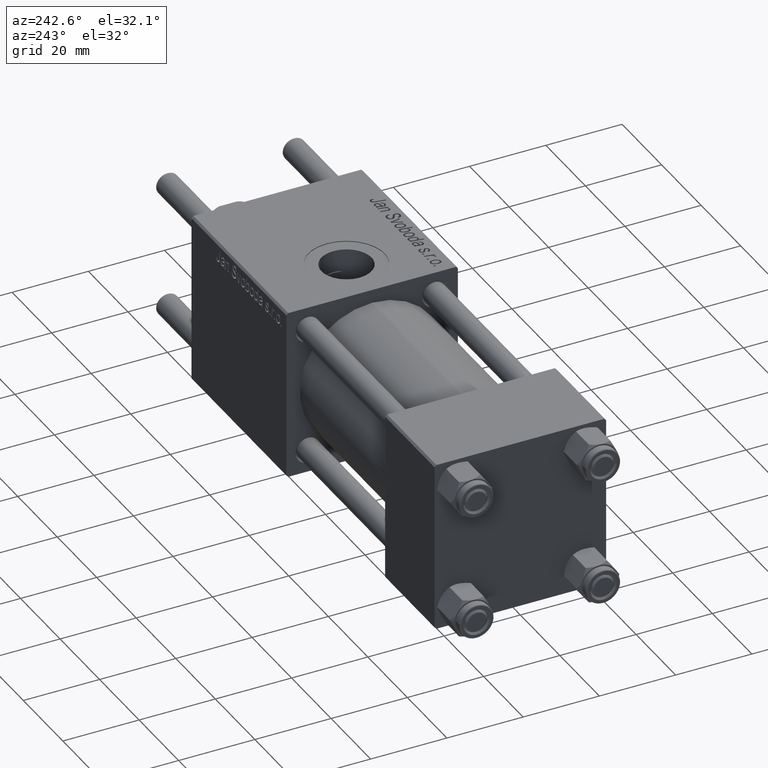
[diagram: clean part render]
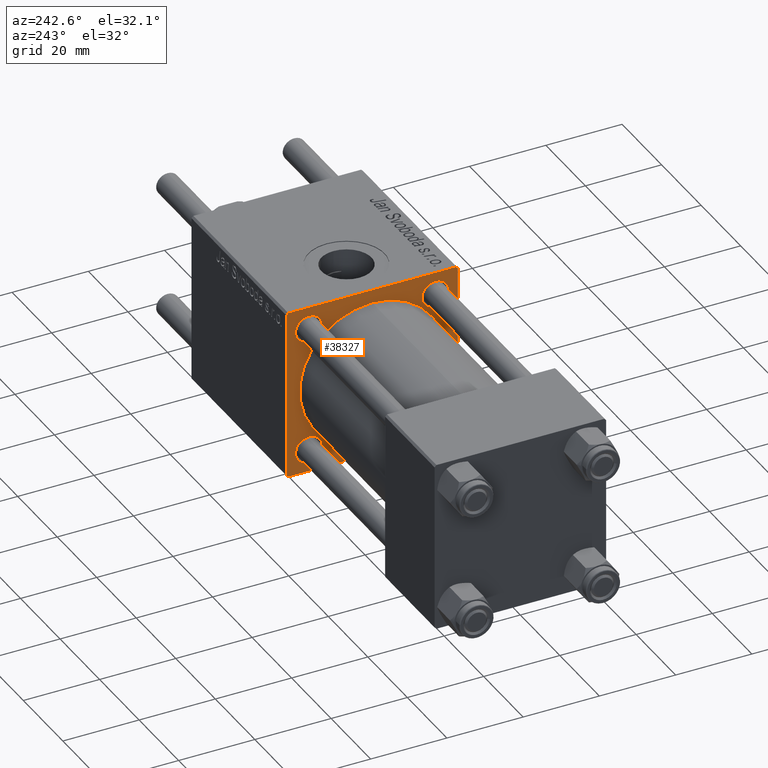
[diagram: same view with one face highlighted and labeled with its STEP entity id]
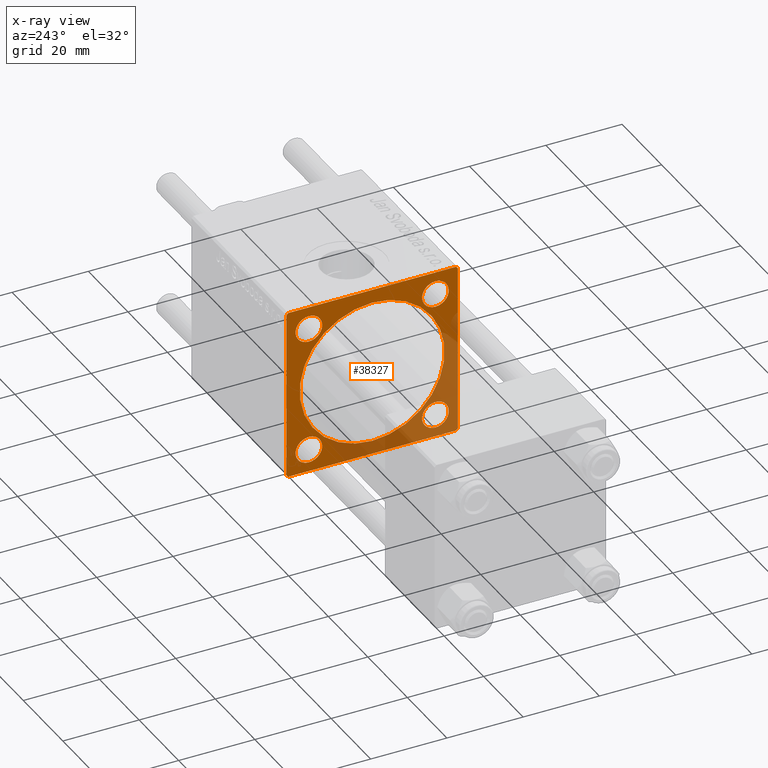
[diagram: x-ray of the same camera — body ghosted, the highlighted face saturated]
A machine part, auxiliary view. The second image highlights one B-rep face of the part: STEP entity #38327.
The next image is the same camera in x-ray: the body ghosted, the highlighted face saturated — about 33% of this face is hidden behind the body in this view.
In plain terms, the highlighted planar face has unit normal (-1, 0, 0).
Its self-contained STEP definition (entity closure, byte-faithful):
#276 = FACE_BOUND ( 'NONE', #54522, .T. ) ;
#398 = DIRECTION ( 'NONE',  ( 0.000000000000000000, 0.7071067811865573427, -0.7071067811865378028 ) ) ;
#882 = ORIENTED_EDGE ( 'NONE', *, *, #22724, .T. ) ;
#2401 = ORIENTED_EDGE ( 'NONE', *, *, #48930, .T. ) ;
#2732 = DIRECTION ( 'NONE',  ( 0.000000000000000000, -1.000000000000000000, -7.709882115452476934E-17 ) ) ;
#2763 = CARTESIAN_POINT ( 'NONE',  ( 75.00000000000001421, 22.24999999999969802, -22.25000000000031619 ) ) ;
#2866 = CARTESIAN_POINT ( 'NONE',  ( 75.00000000000001421, 16.59999999999999787, 16.60000000000000497 ) ) ;
#3152 = DIRECTION ( 'NONE',  ( 0.000000000000000000, 0.000000000000000000, 1.000000000000000000 ) ) ;
#3282 = VERTEX_POINT ( 'NONE', #40581 ) ;
#3482 = FACE_BOUND ( 'NONE', #8520, .T. ) ;
#3771 = FACE_BOUND ( 'NONE', #48460, .T. ) ;
#4140 = VERTEX_POINT ( 'NONE', #20166 ) ;
#4346 = CARTESIAN_POINT ( 'NONE',  ( 75.00000000000001421, -22.49999999999999645, 22.49999999999999289 ) ) ;
#4892 = ORIENTED_EDGE ( 'NONE', *, *, #25230, .T. ) ;
#5346 = AXIS2_PLACEMENT_3D ( 'NONE', #16384, #29632, #33946 ) ;
#5455 = CARTESIAN_POINT ( 'NONE',  ( 75.00000000000001421, -22.49999999999999645, 22.00000000000000711 ) ) ;
#5637 = LINE ( 'NONE', #24041, #22282 ) ;
#6040 = CARTESIAN_POINT ( 'NONE',  ( 75.00000000000001421, -22.24999999999969447, 22.25000000000030909 ) ) ;
#6173 = ORIENTED_EDGE ( 'NONE', *, *, #8071, .T. ) ;
#6295 = VECTOR ( 'NONE', #398, 1000.000000000000000 ) ;
#6406 = EDGE_CURVE ( 'NONE', #36376, #54645, #51437, .T. ) ;
#6855 = CARTESIAN_POINT ( 'NONE',  ( 75.00000000000001421, -21.99999999999998224, 22.49999999999999289 ) ) ;
#6980 = EDGE_LOOP ( 'NONE', ( #15155, #6173 ) ) ;
#7081 = EDGE_CURVE ( 'NONE', #4140, #39447, #55218, .T. ) ;
#7753 = DIRECTION ( 'NONE',  ( 1.000000000000000000, -0.000000000000000000, 0.000000000000000000 ) ) ;
#8071 = EDGE_CURVE ( 'NONE', #54421, #10940, #43592, .T. ) ;
#8520 = EDGE_LOOP ( 'NONE', ( #39791, #50613 ) ) ;
#8642 = AXIS2_PLACEMENT_3D ( 'NONE', #22662, #31573, #40250 ) ;
#9504 = CARTESIAN_POINT ( 'NONE',  ( 75.00000000000001421, -2.752562955852396712E-16, -19.00000000000000000 ) ) ;
#9583 = VERTEX_POINT ( 'NONE', #28149 ) ;
#9734 = AXIS2_PLACEMENT_3D ( 'NONE', #25753, #16525, #33509 ) ;
#9835 = ORIENTED_EDGE ( 'NONE', *, *, #14162, .T. ) ;
#9852 = EDGE_LOOP ( 'NONE', ( #882, #51970, #14075, #51284, #46346, #16383, #20194, #25691 ) ) ;
#9876 = VECTOR ( 'NONE', #2732, 1000.000000000000000 ) ;
#10363 = LINE ( 'NONE', #6040, #45503 ) ;
#10458 = ORIENTED_EDGE ( 'NONE', *, *, #18955, .T. ) ;
#10940 = VERTEX_POINT ( 'NONE', #45061 ) ;
#11078 = DIRECTION ( 'NONE',  ( 1.000000000000000000, 0.000000000000000000, 0.000000000000000000 ) ) ;
#11506 = EDGE_CURVE ( 'NONE', #29976, #17601, #10363, .T. ) ;
#11594 = VECTOR ( 'NONE', #17094, 1000.000000000000000 ) ;
#12139 = CARTESIAN_POINT ( 'NONE',  ( 75.00000000000001421, -16.59999999999999076, -20.10000000000003695 ) ) ;
#12453 = ORIENTED_EDGE ( 'NONE', *, *, #30719, .T. ) ;
#12976 = CARTESIAN_POINT ( 'NONE',  ( 75.00000000000001421, -16.59999999999999076, 20.10000000000002274 ) ) ;
#13224 = FACE_BOUND ( 'NONE', #17630, .T. ) ;
#13249 = AXIS2_PLACEMENT_3D ( 'NONE', #15648, #11078, #42709 ) ;
#14075 = ORIENTED_EDGE ( 'NONE', *, *, #39975, .F. ) ;
#14162 = EDGE_CURVE ( 'NONE', #47550, #34654, #17835, .T. ) ;
#14788 = CARTESIAN_POINT ( 'NONE',  ( 75.00000000000001421, 22.24999999999968026, 22.25000000000029488 ) ) ;
#15155 = ORIENTED_EDGE ( 'NONE', *, *, #17900, .T. ) ;
#15237 = CIRCLE ( 'NONE', #36351, 3.500000000000031086 ) ;
#15648 = CARTESIAN_POINT ( 'NONE',  ( 75.00000000000001421, -2.602085213965210642E-15, 0.000000000000000000 ) ) ;
#15857 = CARTESIAN_POINT ( 'NONE',  ( 75.00000000000001421, 22.50000000000000355, -21.99999999999999645 ) ) ;
#16383 = ORIENTED_EDGE ( 'NONE', *, *, #31369, .T. ) ;
#16384 = CARTESIAN_POINT ( 'NONE',  ( 75.00000000000001421, -16.59999999999999076, 16.60000000000000853 ) ) ;
#16525 = DIRECTION ( 'NONE',  ( 1.000000000000000000, 0.000000000000000000, 0.000000000000000000 ) ) ;
#17094 = DIRECTION ( 'NONE',  ( -0.000000000000000000, -0.7071067811865573427, -0.7071067811865378028 ) ) ;
#17287 = CIRCLE ( 'NONE', #49510, 3.500000000000016875 ) ;
#17299 = CARTESIAN_POINT ( 'NONE',  ( 75.00000000000001421, -16.59999999999999076, -16.60000000000000853 ) ) ;
#17601 = VERTEX_POINT ( 'NONE', #6855 ) ;
#17630 = EDGE_LOOP ( 'NONE', ( #32527, #4892 ) ) ;
#17835 = CIRCLE ( 'NONE', #13249, 19.00000000000000000 ) ;
#17900 = EDGE_CURVE ( 'NONE', #10940, #54421, #15237, .T. ) ;
#18539 = CARTESIAN_POINT ( 'NONE',  ( 75.00000000000001421, 21.99999999999996092, 22.50000000000000355 ) ) ;
#18558 = EDGE_CURVE ( 'NONE', #3282, #55380, #28993, .T. ) ;
#18874 = AXIS2_PLACEMENT_3D ( 'NONE', #38192, #37914, #24679 ) ;
#18955 = EDGE_CURVE ( 'NONE', #34654, #47550, #34536, .T. ) ;
#19428 = DIRECTION ( 'NONE',  ( 0.000000000000000000, 0.000000000000000000, 1.000000000000000000 ) ) ;
#19751 = EDGE_CURVE ( 'NONE', #54645, #39469, #29211, .T. ) ;
#20166 = CARTESIAN_POINT ( 'NONE',  ( 75.00000000000001421, 16.59999999999999787, 13.09999999999998721 ) ) ;
#20194 = ORIENTED_EDGE ( 'NONE', *, *, #6406, .T. ) ;
#20890 = VECTOR ( 'NONE', #24358, 999.9999999999998863 ) ;
#21314 = CARTESIAN_POINT ( 'NONE',  ( 75.00000000000001421, 0.000000000000000000, 0.000000000000000000 ) ) ;
#21386 = CARTESIAN_POINT ( 'NONE',  ( 75.00000000000001421, 16.59999999999999787, -20.10000000000003340 ) ) ;
#21869 = VERTEX_POINT ( 'NONE', #18539 ) ;
#22282 = VECTOR ( 'NONE', #28049, 1000.000000000000000 ) ;
#22358 = VERTEX_POINT ( 'NONE', #12976 ) ;
#22662 = CARTESIAN_POINT ( 'NONE',  ( 75.00000000000001421, 16.59999999999999787, -16.60000000000000497 ) ) ;
#22724 = EDGE_CURVE ( 'NONE', #39469, #54398, #23751, .T. ) ;
#23211 = LINE ( 'NONE', #54891, #20890 ) ;
#23751 = LINE ( 'NONE', #32637, #9876 ) ;
#24041 = CARTESIAN_POINT ( 'NONE',  ( 75.00000000000001421, 22.50000000000000355, 22.50000000000000355 ) ) ;
#24358 = DIRECTION ( 'NONE',  ( 0.000000000000000000, -0.7071067811865425767, 0.7071067811865525687 ) ) ;
#24679 = DIRECTION ( 'NONE',  ( 0.000000000000000000, 0.000000000000000000, 1.000000000000000000 ) ) ;
#24853 = CARTESIAN_POINT ( 'NONE',  ( 75.00000000000001421, -21.99999999999998224, -22.50000000000000000 ) ) ;
#25215 = CARTESIAN_POINT ( 'NONE',  ( 75.00000000000001421, 22.50000000000000355, 22.50000000000000355 ) ) ;
#25230 = EDGE_CURVE ( 'NONE', #55380, #3282, #38409, .T. ) ;
#25691 = ORIENTED_EDGE ( 'NONE', *, *, #19751, .T. ) ;
#25753 = CARTESIAN_POINT ( 'NONE',  ( 75.00000000000001421, -2.602085213965210642E-15, 0.000000000000000000 ) ) ;
#25909 = DIRECTION ( 'NONE',  ( -0.000000000000000000, 0.000000000000000000, 1.000000000000000000 ) ) ;
#26655 = CARTESIAN_POINT ( 'NONE',  ( 75.00000000000001421, -2.602085213965210642E-15, 19.00000000000000000 ) ) ;
#27572 = VECTOR ( 'NONE', #42799, 1000.000000000000000 ) ;
#28049 = DIRECTION ( 'NONE',  ( 0.000000000000000000, -1.000000000000000000, -2.312964634635742957E-16 ) ) ;
#28149 = CARTESIAN_POINT ( 'NONE',  ( 75.00000000000001421, -22.49999999999999645, -21.99999999999997868 ) ) ;
#28899 = DIRECTION ( 'NONE',  ( 0.000000000000000000, 0.000000000000000000, 1.000000000000000000 ) ) ;
#28993 = CIRCLE ( 'NONE', #18874, 3.500000000000031086 ) ;
#29211 = LINE ( 'NONE', #2763, #11594 ) ;
#29477 = AXIS2_PLACEMENT_3D ( 'NONE', #21314, #52412, #25909 ) ;
#29632 = DIRECTION ( 'NONE',  ( 1.000000000000000000, -0.000000000000000000, 0.000000000000000000 ) ) ;
#29976 = VERTEX_POINT ( 'NONE', #5455 ) ;
#30150 = CIRCLE ( 'NONE', #5346, 3.500000000000016875 ) ;
#30719 = EDGE_CURVE ( 'NONE', #22358, #47485, #30150, .T. ) ;
#31187 = LINE ( 'NONE', #14788, #6295 ) ;
#31369 = EDGE_CURVE ( 'NONE', #21869, #36376, #31187, .T. ) ;
#31573 = DIRECTION ( 'NONE',  ( 1.000000000000000000, -0.000000000000000000, 0.000000000000000000 ) ) ;
#32527 = ORIENTED_EDGE ( 'NONE', *, *, #18558, .T. ) ;
#32637 = CARTESIAN_POINT ( 'NONE',  ( 75.00000000000001421, 22.50000000000000355, -22.49999999999999645 ) ) ;
#33509 = DIRECTION ( 'NONE',  ( 0.000000000000000000, 0.000000000000000000, -1.000000000000000000 ) ) ;
#33946 = DIRECTION ( 'NONE',  ( 0.000000000000000000, 0.000000000000000000, 1.000000000000000000 ) ) ;
#34536 = CIRCLE ( 'NONE', #9734, 19.00000000000000000 ) ;
#34537 = CARTESIAN_POINT ( 'NONE',  ( 75.00000000000001421, 22.50000000000000355, 21.99999999999997513 ) ) ;
#34654 = VERTEX_POINT ( 'NONE', #26655 ) ;
#36128 = CARTESIAN_POINT ( 'NONE',  ( 75.00000000000001421, 16.59999999999999787, -16.60000000000000497 ) ) ;
#36351 = AXIS2_PLACEMENT_3D ( 'NONE', #36128, #40478, #19428 ) ;
#36376 = VERTEX_POINT ( 'NONE', #34537 ) ;
#37109 = CARTESIAN_POINT ( 'NONE',  ( 75.00000000000001421, 16.59999999999999787, 20.10000000000001918 ) ) ;
#37549 = DIRECTION ( 'NONE',  ( 1.000000000000000000, -0.000000000000000000, 0.000000000000000000 ) ) ;
#37914 = DIRECTION ( 'NONE',  ( 1.000000000000000000, -0.000000000000000000, 0.000000000000000000 ) ) ;
#38192 = CARTESIAN_POINT ( 'NONE',  ( 75.00000000000001421, -16.59999999999999076, -16.60000000000000853 ) ) ;
#38246 = DIRECTION ( 'NONE',  ( 1.000000000000000000, -0.000000000000000000, 0.000000000000000000 ) ) ;
#38307 = CARTESIAN_POINT ( 'NONE',  ( 75.00000000000001421, -16.59999999999999076, 13.09999999999999076 ) ) ;
#38327 = ADVANCED_FACE ( 'NONE', ( #276, #3482, #47531, #13224, #3771, #39159 ), #56722, .T. ) ;
#38409 = CIRCLE ( 'NONE', #46740, 3.500000000000031086 ) ;
#39159 = FACE_OUTER_BOUND ( 'NONE', #9852, .T. ) ;
#39447 = VERTEX_POINT ( 'NONE', #37109 ) ;
#39469 = VERTEX_POINT ( 'NONE', #47760 ) ;
#39791 = ORIENTED_EDGE ( 'NONE', *, *, #55734, .T. ) ;
#39975 = EDGE_CURVE ( 'NONE', #29976, #9583, #43794, .T. ) ;
#40250 = DIRECTION ( 'NONE',  ( 0.000000000000000000, 0.000000000000000000, 1.000000000000000000 ) ) ;
#40478 = DIRECTION ( 'NONE',  ( 1.000000000000000000, -0.000000000000000000, 0.000000000000000000 ) ) ;
#40581 = CARTESIAN_POINT ( 'NONE',  ( 75.00000000000001421, -16.59999999999999076, -13.09999999999997655 ) ) ;
#42709 = DIRECTION ( 'NONE',  ( 0.000000000000000000, 0.000000000000000000, -1.000000000000000000 ) ) ;
#42799 = DIRECTION ( 'NONE',  ( 0.000000000000000000, 0.000000000000000000, -1.000000000000000000 ) ) ;
#42855 = AXIS2_PLACEMENT_3D ( 'NONE', #55683, #37549, #28899 ) ;
#43592 = CIRCLE ( 'NONE', #8642, 3.500000000000031086 ) ;
#43794 = LINE ( 'NONE', #4346, #52514 ) ;
#43819 = DIRECTION ( 'NONE',  ( 1.000000000000000000, -0.000000000000000000, 0.000000000000000000 ) ) ;
#44780 = EDGE_CURVE ( 'NONE', #21869, #17601, #5637, .T. ) ;
#45061 = CARTESIAN_POINT ( 'NONE',  ( 75.00000000000001421, 16.59999999999999787, -13.09999999999997300 ) ) ;
#45503 = VECTOR ( 'NONE', #54687, 1000.000000000000000 ) ;
#46346 = ORIENTED_EDGE ( 'NONE', *, *, #44780, .F. ) ;
#46740 = AXIS2_PLACEMENT_3D ( 'NONE', #17299, #43819, #47862 ) ;
#46931 = CARTESIAN_POINT ( 'NONE',  ( 75.00000000000001421, -16.59999999999999076, 16.60000000000000853 ) ) ;
#47485 = VERTEX_POINT ( 'NONE', #38307 ) ;
#47531 = FACE_BOUND ( 'NONE', #6980, .T. ) ;
#47550 = VERTEX_POINT ( 'NONE', #9504 ) ;
#47760 = CARTESIAN_POINT ( 'NONE',  ( 75.00000000000001421, 22.00000000000000355, -22.49999999999999645 ) ) ;
#47862 = DIRECTION ( 'NONE',  ( 0.000000000000000000, 0.000000000000000000, 1.000000000000000000 ) ) ;
#48460 = EDGE_LOOP ( 'NONE', ( #10458, #9835 ) ) ;
#48930 = EDGE_CURVE ( 'NONE', #47485, #22358, #49429, .T. ) ;
#49429 = CIRCLE ( 'NONE', #50374, 3.500000000000016875 ) ;
#49510 = AXIS2_PLACEMENT_3D ( 'NONE', #2866, #7753, #55268 ) ;
#50374 = AXIS2_PLACEMENT_3D ( 'NONE', #46931, #38246, #3152 ) ;
#50613 = ORIENTED_EDGE ( 'NONE', *, *, #7081, .T. ) ;
#51284 = ORIENTED_EDGE ( 'NONE', *, *, #11506, .T. ) ;
#51437 = LINE ( 'NONE', #25215, #27572 ) ;
#51970 = ORIENTED_EDGE ( 'NONE', *, *, #54042, .T. ) ;
#52412 = DIRECTION ( 'NONE',  ( -1.000000000000000000, 0.000000000000000000, -0.000000000000000000 ) ) ;
#52514 = VECTOR ( 'NONE', #52973, 1000.000000000000000 ) ;
#52973 = DIRECTION ( 'NONE',  ( 0.000000000000000000, 0.000000000000000000, -1.000000000000000000 ) ) ;
#54042 = EDGE_CURVE ( 'NONE', #54398, #9583, #23211, .T. ) ;
#54398 = VERTEX_POINT ( 'NONE', #24853 ) ;
#54421 = VERTEX_POINT ( 'NONE', #21386 ) ;
#54522 = EDGE_LOOP ( 'NONE', ( #12453, #2401 ) ) ;
#54645 = VERTEX_POINT ( 'NONE', #15857 ) ;
#54687 = DIRECTION ( 'NONE',  ( -0.000000000000000000, 0.7071067811865573427, 0.7071067811865378028 ) ) ;
#54891 = CARTESIAN_POINT ( 'NONE',  ( 75.00000000000001421, -22.25000000000015277, -22.24999999999984013 ) ) ;
#55218 = CIRCLE ( 'NONE', #42855, 3.500000000000016875 ) ;
#55268 = DIRECTION ( 'NONE',  ( 0.000000000000000000, 0.000000000000000000, 1.000000000000000000 ) ) ;
#55380 = VERTEX_POINT ( 'NONE', #12139 ) ;
#55683 = CARTESIAN_POINT ( 'NONE',  ( 75.00000000000001421, 16.59999999999999787, 16.60000000000000497 ) ) ;
#55734 = EDGE_CURVE ( 'NONE', #39447, #4140, #17287, .T. ) ;
#56722 = PLANE ( 'NONE',  #29477 ) ;